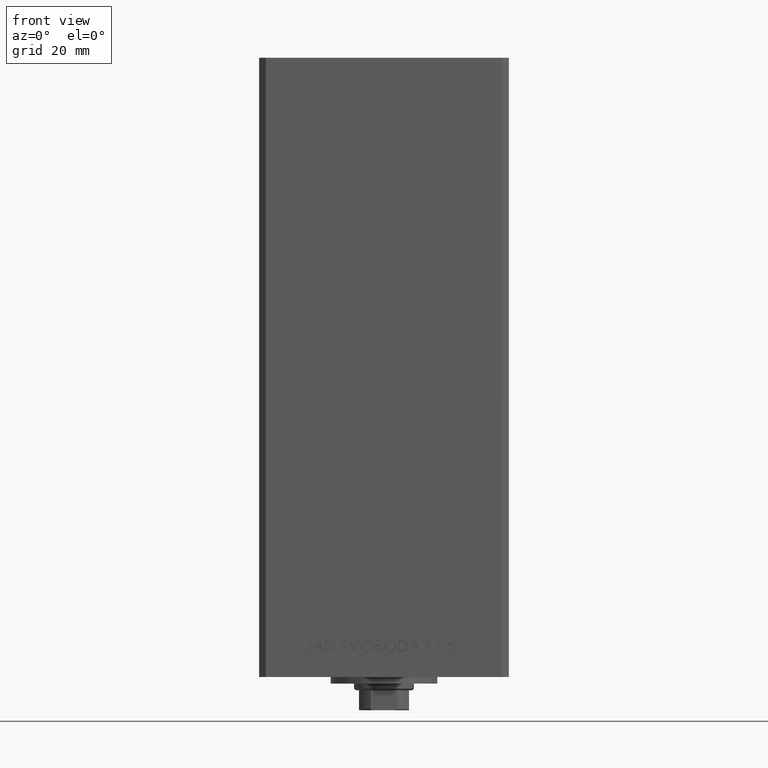
[diagram: clean part render]
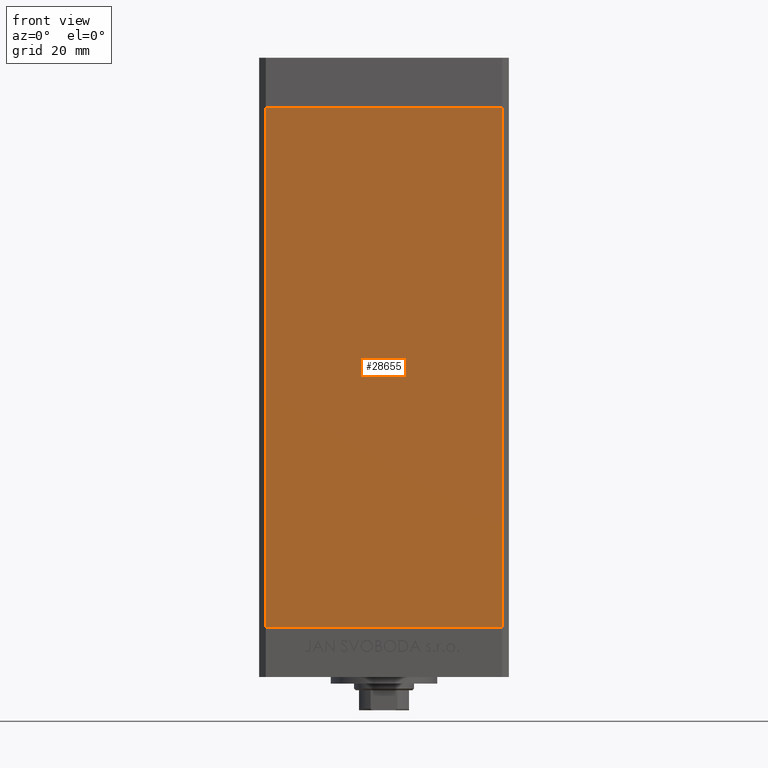
[diagram: same view with one face highlighted and labeled with its STEP entity id]
A machine part, front view. The second image highlights one B-rep face of the part: STEP entity #28655.
In plain terms, the highlighted planar face has unit normal (0, 1, 0).
Its self-contained STEP definition (entity closure, byte-faithful):
#901 = EDGE_CURVE ( 'NONE', #35261, #15113, #47112, .T. ) ;
#2420 = VERTEX_POINT ( 'NONE', #46507 ) ;
#2854 = DIRECTION ( 'NONE',  ( -0.000000000000000000, -0.000000000000000000, -1.000000000000000000 ) ) ;
#3480 = CARTESIAN_POINT ( 'NONE',  ( 35.49999999999999289, -32.50000000000000000, 0.000000000000000000 ) ) ;
#4465 = CARTESIAN_POINT ( 'NONE',  ( -35.49999999999999289, -32.50000000000000000, 156.0000000000000000 ) ) ;
#5478 = CARTESIAN_POINT ( 'NONE',  ( -35.49999999999999289, -32.50000000000000000, 0.000000000000000000 ) ) ;
#6026 = DIRECTION ( 'NONE',  ( 0.000000000000000000, 1.000000000000000000, 0.000000000000000000 ) ) ;
#8452 = LINE ( 'NONE', #4465, #32391 ) ;
#9578 = EDGE_CURVE ( 'NONE', #10951, #15113, #47801, .T. ) ;
#10951 = VERTEX_POINT ( 'NONE', #17614 ) ;
#11243 = ORIENTED_EDGE ( 'NONE', *, *, #9578, .T. ) ;
#11302 = ORIENTED_EDGE ( 'NONE', *, *, #26126, .T. ) ;
#12452 = DIRECTION ( 'NONE',  ( 1.000000000000000000, 0.000000000000000000, 0.000000000000000000 ) ) ;
#13240 = CARTESIAN_POINT ( 'NONE',  ( 35.49999999999999289, -32.50000000000000000, 156.0000000000000000 ) ) ;
#14236 = DIRECTION ( 'NONE',  ( 0.000000000000000000, -0.000000000000000000, 1.000000000000000000 ) ) ;
#15113 = VERTEX_POINT ( 'NONE', #3480 ) ;
#17614 = CARTESIAN_POINT ( 'NONE',  ( -35.49999999999999289, -32.50000000000000000, 0.000000000000000000 ) ) ;
#25266 = EDGE_LOOP ( 'NONE', ( #11243, #41778, #44998, #11302 ) ) ;
#26126 = EDGE_CURVE ( 'NONE', #2420, #10951, #40482, .T. ) ;
#28655 = ADVANCED_FACE ( 'NONE', ( #42664 ), #31454, .F. ) ;
#29771 = AXIS2_PLACEMENT_3D ( 'NONE', #36408, #6026, #14236 ) ;
#31454 = PLANE ( 'NONE',  #29771 ) ;
#32391 = VECTOR ( 'NONE', #12452, 1000.000000000000000 ) ;
#32839 = VECTOR ( 'NONE', #2854, 1000.000000000000000 ) ;
#33016 = CARTESIAN_POINT ( 'NONE',  ( -35.49999999999999289, -32.50000000000000000, 156.0000000000000000 ) ) ;
#34079 = DIRECTION ( 'NONE',  ( 1.000000000000000000, 0.000000000000000000, 0.000000000000000000 ) ) ;
#35261 = VERTEX_POINT ( 'NONE', #48974 ) ;
#35651 = DIRECTION ( 'NONE',  ( -0.000000000000000000, -0.000000000000000000, -1.000000000000000000 ) ) ;
#36408 = CARTESIAN_POINT ( 'NONE',  ( -35.49999999999999289, -32.50000000000000000, 156.0000000000000000 ) ) ;
#39239 = VECTOR ( 'NONE', #35651, 1000.000000000000000 ) ;
#39608 = EDGE_CURVE ( 'NONE', #2420, #35261, #8452, .T. ) ;
#40482 = LINE ( 'NONE', #33016, #32839 ) ;
#41778 = ORIENTED_EDGE ( 'NONE', *, *, #901, .F. ) ;
#42664 = FACE_OUTER_BOUND ( 'NONE', #25266, .T. ) ;
#44998 = ORIENTED_EDGE ( 'NONE', *, *, #39608, .F. ) ;
#46507 = CARTESIAN_POINT ( 'NONE',  ( -35.49999999999999289, -32.50000000000000000, 156.0000000000000000 ) ) ;
#46612 = VECTOR ( 'NONE', #34079, 1000.000000000000000 ) ;
#47112 = LINE ( 'NONE', #13240, #39239 ) ;
#47801 = LINE ( 'NONE', #5478, #46612 ) ;
#48974 = CARTESIAN_POINT ( 'NONE',  ( 35.49999999999999289, -32.50000000000000000, 156.0000000000000000 ) ) ;